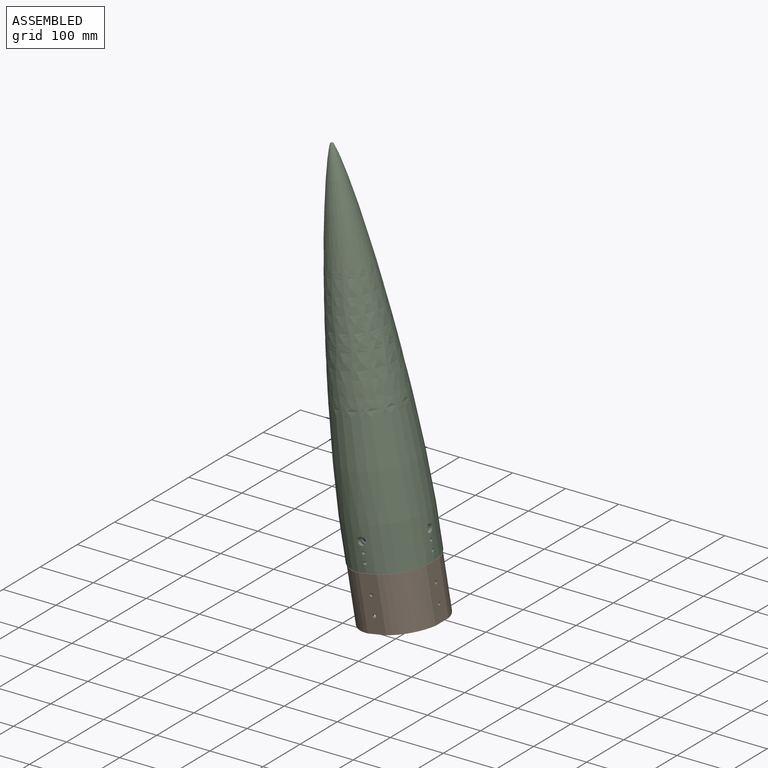
[diagram: assembled view]
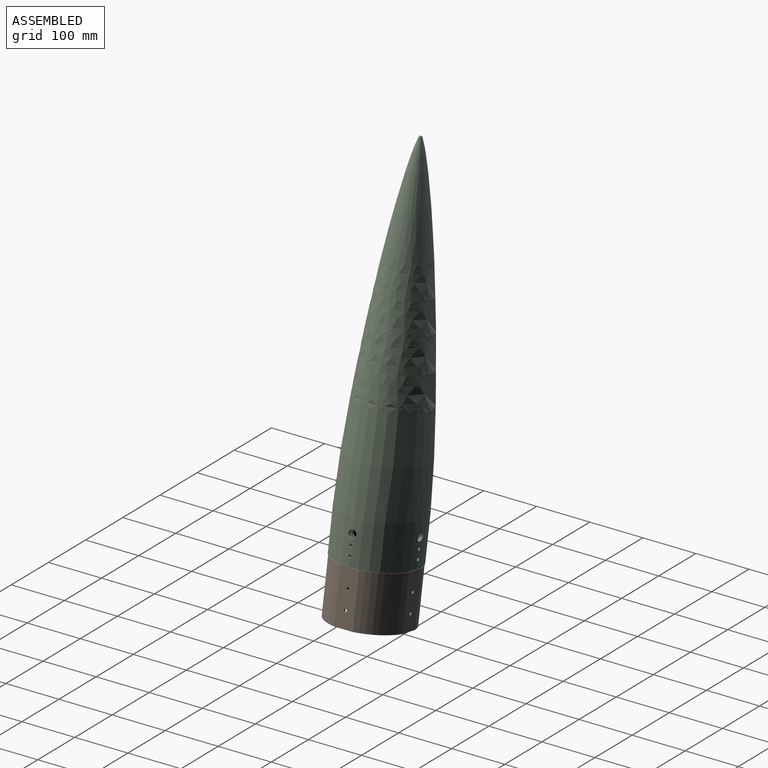
[diagram: assembled view, second angle]
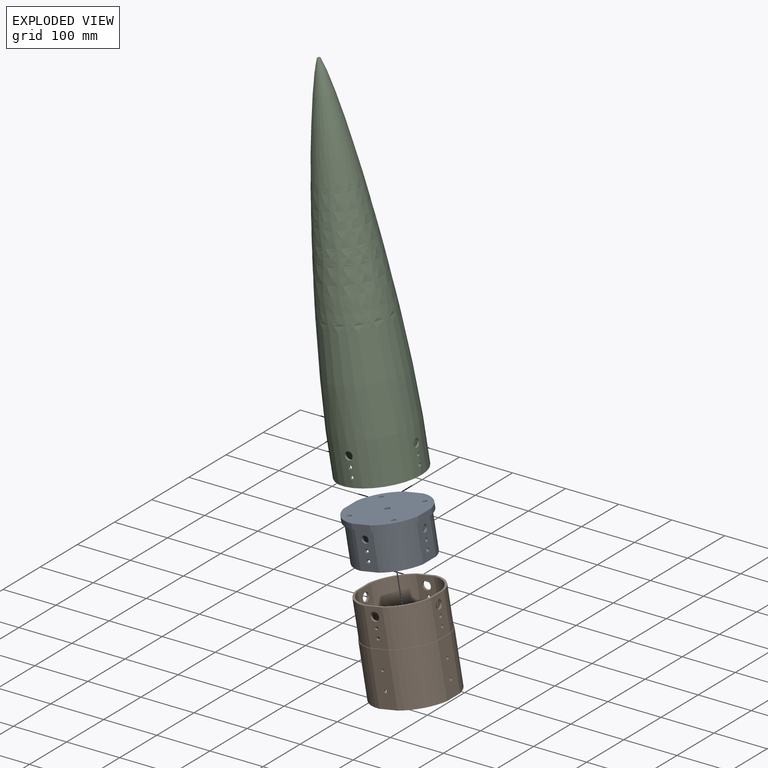
[diagram: exploded view]
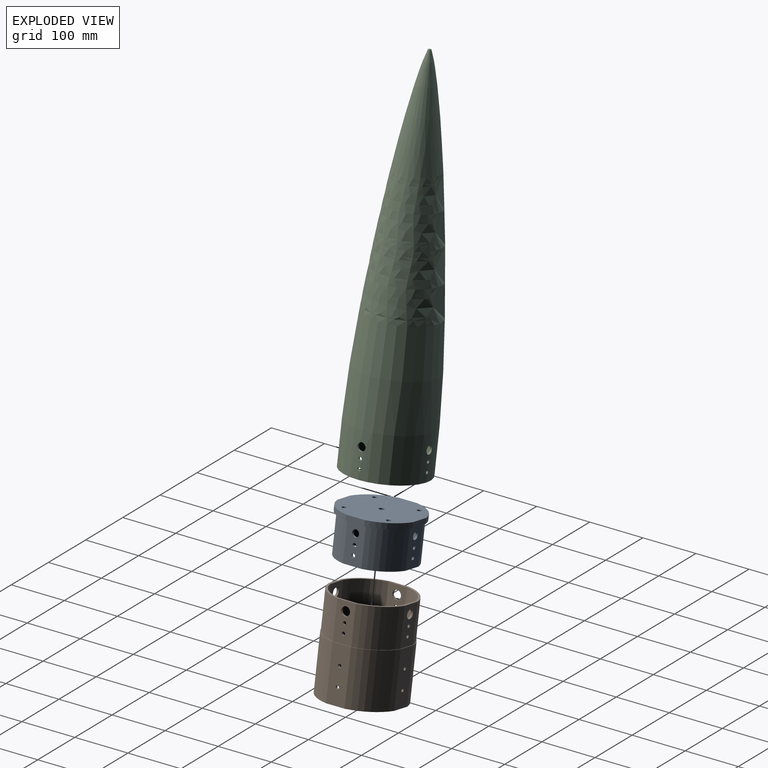
[diagram: exploded view, second angle]
ASSEMBLY  parts=3 mates=2
PART A: 45 faces, bbox 142.8x142.8x80 mm
  f0: plane 70x35mm, normal (0,-1,0), area 2246.8mm2, adj f1,f15,f16,f17,f28,f29,f30
  f1: cylinder r=69mm len=70mm, axis (0,0,-1), area 5109.9mm2, adj f0,f2,f16,f17
  f2: plane 70x35mm, normal (1,0,0), area 2246.8mm2, adj f1,f3,f16,f17,f31,f32,f33
  f3: cylinder r=69mm len=70mm, axis (0,0,-1), area 5109.9mm2, adj f2,f4,f16,f17
  f4: plane 70x35mm, normal (0,1,0), area 2246.8mm2, adj f3,f5,f16,f17,f34,f35,f36
  f5: cylinder r=69mm len=70mm, axis (0,0,-1), area 5109.9mm2, adj f4,f6,f16,f17
  f6: plane 70x35mm, normal (-1,0,0), area 2246.8mm2, adj f5,f15,f16,f17,f37,f38,f39
  f7: cylinder r=65mm len=70mm, axis (0,0,-1), area 4666.5mm2, adj f8,f14,f16,f27
  f8: plane 70x35mm, normal (0,1,0), area 2246.8mm2, adj f7,f9,f16,f27,f28,f29,f30
  f9: cylinder r=65mm len=70mm, axis (0,0,-1), area 4666.5mm2, adj f8,f10,f16,f27
  f10: plane 70x35mm, normal (1,0,0), area 2246.8mm2, adj f9,f11,f16,f27,f37,f38,f39
  f11: cylinder r=65mm len=70mm, axis (0,0,-1), area 4666.5mm2, adj f10,f12,f16,f27
  f12: plane 70x35mm, normal (0,-1,0), area 2246.8mm2, adj f11,f13,f16,f27,f34,f35,f36
  f13: cylinder r=65mm len=70mm, axis (0,0,-1), area 4666.5mm2, adj f12,f14,f16,f27
  f14: plane 70x35mm, normal (-1,0,0), area 2246.8mm2, adj f7,f13,f16,f27,f31,f32,f33
  f15: cylinder r=69mm len=70mm, axis (0,0,-1), area 5109.9mm2, adj f0,f6,f16,f17
  f16: plane 133.49x133.49mm, normal (0,0,-1), area 1697.5mm2, adj f0,f1,f2,f3,f4,f5,f6,f7
  f17: plane 142.77x142.77mm, normal (0,0,-1), area 2028mm2, adj f0,f1,f2,f3,f4,f5,f6,f15
  f18: plane 142.77x142.77mm, normal (0,0,1), area 16484mm2, adj f19,f20,f21,f22,f23,f24,f25,f26
  f19: cylinder r=73.5mm len=53.89mm, axis (0,0,-1), area 801.1mm2, adj f17,f18,f20,f26
  f20: plane 35x10mm, normal (-1,0,0), area 350mm2, adj f17,f18,f19,f21
  f21: cylinder r=73.5mm len=53.89mm, axis (0,0,-1), area 801.1mm2, adj f17,f18,f20,f22
  f22: plane 35x10mm, normal (0,1,0), area 350mm2, adj f17,f18,f21,f23
  f23: cylinder r=73.5mm len=53.89mm, axis (0,0,-1), area 801.1mm2, adj f17,f18,f22,f24
  f24: plane 35x10mm, normal (1,0,0), area 350mm2, adj f17,f18,f23,f25
  f25: cylinder r=73.5mm len=53.89mm, axis (0,0,-1), area 801.1mm2, adj f17,f18,f24,f26
  f26: plane 35x10mm, normal (0,-1,0), area 350mm2, adj f17,f18,f19,f25
  f27: plane 125.2x125.2mm, normal (0,0,-1), area 12758.6mm2, adj f7,f8,f9,f10,f11,f12,f13,f14
  f28: cylinder r=3.35mm len=6.7mm, axis (0,-1,0), area 87.2mm2, adj f0,f8
  f29: cylinder r=3.35mm len=6.7mm, axis (0,-1,0), area 87.2mm2, adj f0,f8
  f30: cylinder r=6.5mm len=13mm, axis (0,-1,0), area 169.2mm2, adj f0,f8
  f31: cylinder r=3.35mm len=6.7mm, axis (1,0,0), area 87.2mm2, adj f2,f14
  f32: cylinder r=3.35mm len=6.7mm, axis (1,0,0), area 87.2mm2, adj f2,f14
  f33: cylinder r=6.5mm len=13mm, axis (1,0,0), area 169.2mm2, adj f2,f14
  f34: cylinder r=3.35mm len=6.7mm, axis (0,1,0), area 87.2mm2, adj f4,f12
  f35: cylinder r=3.35mm len=6.7mm, axis (0,1,0), area 87.2mm2, adj f4,f12
  f36: cylinder r=6.5mm len=13mm, axis (0,1,0), area 169.2mm2, adj f4,f12
  f37: cylinder r=3.35mm len=6.7mm, axis (-1,0,0), area 87.2mm2, adj f6,f10
  f38: cylinder r=3.35mm len=6.7mm, axis (-1,0,0), area 87.2mm2, adj f6,f10
  f39: cylinder r=6.5mm len=13mm, axis (-1,0,0), area 169.2mm2, adj f6,f10
  f40: cylinder r=5mm len=10mm, axis (0,0,1), area 314.2mm2, adj f18,f27
  f41: cylinder r=4.1mm len=10mm, axis (0,0,1), area 257.6mm2, adj f18,f27
  f42: cylinder r=4.1mm len=10mm, axis (0,0,1), area 257.6mm2, adj f18,f27
  f43: cylinder r=4.1mm len=10mm, axis (0,0,1), area 257.6mm2, adj f18,f27
  f44: cylinder r=4.1mm len=10mm, axis (0,0,1), area 257.6mm2, adj f18,f27
PART B: 47 faces, bbox 145.9x145.9x170 mm
  f0: plane 145.86x145.86mm, normal (0,0,1), area 470.8mm2, adj f1,f2,f3,f4,f5,f6,f7,f16
  f1: plane 100x35mm, normal (0,-1,0), area 3441.6mm2, adj f0,f2,f16,f17,f41,f42
  f2: cylinder r=75mm len=100mm, axis (0,0,-1), area 8248.4mm2, adj f0,f1,f3,f17
  f3: plane 100x35mm, normal (1,0,0), area 3441.6mm2, adj f0,f2,f4,f17,f39,f40
  f4: cylinder r=75mm len=100mm, axis (0,0,-1), area 8248.4mm2, adj f0,f3,f5,f17
  f5: plane 100x35mm, normal (0,1,0), area 3441.6mm2, adj f0,f4,f6,f17,f43,f44
  f6: cylinder r=75mm len=100mm, axis (0,0,-1), area 8248.4mm2, adj f0,f5,f7,f17
  f7: plane 100x35mm, normal (-1,0,0), area 3441.6mm2, adj f0,f6,f16,f17,f45,f46
  f8: cylinder r=70mm len=170mm, axis (0,0,-1), area 12678.7mm2, adj f9,f15,f17,f26
  f9: plane 170x35mm, normal (0,1,0), area 5625mm2, adj f8,f10,f17,f26,f27,f28,f29,f41
  f10: cylinder r=70mm len=170mm, axis (0,0,-1), area 12678.7mm2, adj f9,f11,f17,f26
  f11: plane 170x35mm, normal (1,0,0), area 5625mm2, adj f10,f12,f17,f26,f36,f37,f38,f45
  f12: cylinder r=70mm len=170mm, axis (0,0,-1), area 12678.7mm2, adj f11,f13,f17,f26
  f13: plane 170x35mm, normal (0,-1,0), area 5625mm2, adj f12,f14,f17,f26,f33,f34,f35,f43
  f14: cylinder r=70mm len=170mm, axis (0,0,-1), area 12678.7mm2, adj f13,f15,f17,f26
  f15: plane 170x35mm, normal (-1,0,0), area 5625mm2, adj f8,f14,f17,f26,f30,f31,f32,f39
  f16: cylinder r=75mm len=100mm, axis (0,0,-1), area 8248.4mm2, adj f0,f1,f7,f17
  f17: plane 145.86x145.86mm, normal (0,0,-1), area 2292mm2, adj f1,f2,f3,f4,f5,f6,f7,f8
  f18: cylinder r=74mm len=70mm, axis (0,0,-1), area 5663.3mm2, adj f0,f19,f25,f26
  f19: plane 70x35mm, normal (1,0,0), area 2183.5mm2, adj f0,f18,f20,f26,f30,f31,f32
  f20: cylinder r=74mm len=70mm, axis (0,0,-1), area 5663.3mm2, adj f0,f19,f21,f26
  f21: plane 70x35mm, normal (0,1,0), area 2183.5mm2, adj f0,f20,f22,f26,f33,f34,f35
  f22: cylinder r=74mm len=70mm, axis (0,0,-1), area 5663.3mm2, adj f0,f21,f23,f26
  f23: plane 70x35mm, normal (-1,0,0), area 2183.5mm2, adj f0,f22,f24,f26,f36,f37,f38
  f24: cylinder r=74mm len=70mm, axis (0,0,-1), area 5663.3mm2, adj f0,f23,f25,f26
  f25: plane 70x35mm, normal (0,-1,0), area 2183.5mm2, adj f0,f18,f24,f26,f27,f28,f29
  f26: plane 143.8x143.8mm, normal (0,0,1), area 1821.2mm2, adj f8,f9,f10,f11,f12,f13,f14,f15
  f27: cylinder r=3.1mm len=6.2mm, axis (0,-1,0), area 80.3mm2, adj f9,f25
  f28: cylinder r=3.1mm len=6.2mm, axis (0,-1,0), area 80.3mm2, adj f9,f25
  f29: cylinder r=8.1mm len=16.2mm, axis (0,-1,0), area 209.9mm2, adj f9,f25
  f30: cylinder r=3.1mm len=6.2mm, axis (1,0,0), area 80.3mm2, adj f15,f19
  f31: cylinder r=3.1mm len=6.2mm, axis (1,0,0), area 80.3mm2, adj f15,f19
  f32: cylinder r=8.1mm len=16.2mm, axis (1,0,0), area 209.9mm2, adj f15,f19
  f33: cylinder r=3.1mm len=6.2mm, axis (0,1,0), area 80.3mm2, adj f13,f21
  f34: cylinder r=3.1mm len=6.2mm, axis (0,1,0), area 80.3mm2, adj f13,f21
  f35: cylinder r=8.1mm len=16.2mm, axis (0,1,0), area 209.9mm2, adj f13,f21
  f36: cylinder r=3.1mm len=6.2mm, axis (-1,0,0), area 80.3mm2, adj f11,f23
  f37: cylinder r=3.1mm len=6.2mm, axis (-1,0,0), area 80.3mm2, adj f11,f23
  f38: cylinder r=8.1mm len=16.2mm, axis (-1,0,0), area 209.9mm2, adj f11,f23
  f39: cylinder r=3.05mm len=6.1mm, axis (1,0,0), area 98.7mm2, adj f3,f15
  f40: cylinder r=3.05mm len=6.1mm, axis (1,0,0), area 98.7mm2, adj f3,f15
  f41: cylinder r=3.05mm len=6.1mm, axis (0,-1,0), area 98.7mm2, adj f1,f9
  f42: cylinder r=3.05mm len=6.1mm, axis (0,-1,0), area 98.7mm2, adj f1,f9
  f43: cylinder r=3.05mm len=6.1mm, axis (0,1,0), area 98.7mm2, adj f5,f13
  f44: cylinder r=3.05mm len=6.1mm, axis (0,1,0), area 98.7mm2, adj f5,f13
  f45: cylinder r=3.05mm len=6.1mm, axis (-1,0,0), area 98.7mm2, adj f7,f11
  f46: cylinder r=3.05mm len=6.1mm, axis (-1,0,0), area 98.7mm2, adj f7,f11
PART C: 30 faces, bbox 683x152x152 mm
  f0: cone r=76mm half-angle=89.8deg, axis (-1,0,0), area 0.4mm2, adj f1,f7
  f1: revolved ~603x152mm, area 190092.9mm2, adj f0,f29
  f2: plane 35x2.1mm, normal (-1,0,0), area 49.1mm2, adj f15,f16
  f3: plane 35x2.1mm, normal (-1,0,0), area 49.1mm2, adj f9,f16
  f4: plane 35x2.1mm, normal (-1,0,0), area 49.1mm2, adj f11,f16
  f5: plane 35x2.1mm, normal (-1,0,0), area 49.1mm2, adj f13,f16
  f6: plane 152x152mm, normal (1,0,0), area 1138.5mm2, adj f7,f8,f9,f10,f11,f12,f13,f14
  f7: cylinder r=76mm len=152mm, axis (-1,0,0), area 37250.8mm2, adj f0,f6,f17,f18,f19,f20,f21,f22
  f8: cylinder r=74mm len=79.99mm, axis (-1,0,0), area 6472mm2, adj f6,f9,f15,f16
  f9: plane 80x35mm, normal (0,0,-1), area 2562.9mm2, adj f3,f6,f8,f10,f16,f26,f27,f28
  f10: cylinder r=74mm len=79.99mm, axis (-1,0,0), area 6472mm2, adj f6,f9,f11,f16
  f11: plane 80x35mm, normal (0,1,0), area 2562.9mm2, adj f4,f6,f10,f12,f16,f23,f24,f25
  f12: cylinder r=74mm len=79.99mm, axis (-1,0,0), area 6472mm2, adj f6,f11,f13,f16
  f13: plane 80x35mm, normal (0,0,1), area 2562.9mm2, adj f5,f6,f12,f14,f16,f20,f21,f22
  f14: cylinder r=74mm len=79.99mm, axis (-1,0,0), area 6472mm2, adj f6,f13,f15,f16
  f15: plane 80x35mm, normal (0,-1,0), area 2562.9mm2, adj f2,f6,f8,f14,f16,f17,f18,f19
  f16: revolved ~603.01x148mm, area 182375.2mm2, adj f2,f3,f4,f5,f8,f9,f10,f11
  f17: cylinder r=7.5mm len=15mm, axis (0,-1,0), area 184.4mm2, adj f7,f15
  f18: cylinder r=3.1mm len=6.2mm, axis (0,-1,0), area 79.2mm2, adj f7,f15
  f19: cylinder r=3.1mm len=6.2mm, axis (0,-1,0), area 79.2mm2, adj f7,f15
  f20: cylinder r=7.5mm len=15mm, axis (0,0,1), area 184.4mm2, adj f7,f13
  f21: cylinder r=3.1mm len=6.2mm, axis (0,0,1), area 79.2mm2, adj f7,f13
  f22: cylinder r=3.1mm len=6.2mm, axis (0,0,1), area 79.2mm2, adj f7,f13
  f23: cylinder r=7.5mm len=15mm, axis (0,1,0), area 184.4mm2, adj f7,f11
  f24: cylinder r=3.1mm len=6.2mm, axis (0,1,0), area 79.2mm2, adj f7,f11
  f25: cylinder r=3.1mm len=6.2mm, axis (0,1,0), area 79.2mm2, adj f7,f11
  f26: cylinder r=3.1mm len=6.2mm, axis (0,0,-1), area 79.2mm2, adj f7,f9
  f27: cylinder r=3.1mm len=6.2mm, axis (0,0,-1), area 79.2mm2, adj f7,f9
  f28: cylinder r=7.5mm len=15mm, axis (0,0,-1), area 184.4mm2, adj f7,f9
  f29: plane 5.4x5.4mm, normal (-1,0,0), area 22mm2, adj f1,f16
PLACE A rot(axis=(0,-1,0),10deg) t=(131.11,10.17,-158.43)mm
PLACE B rot(axis=(0,-1,0),10deg) t=(148.65,10.17,-257.92)mm
PLACE C rot(axis=(0,1,0),80deg) t=(11.5,10.17,519.91)mm
MATE slider A.f1 <-> B.f2  axis (-0.17,0,0.98) through (117.21,10.17,-79.64)mm
MATE slider C.f0 <-> A.f1  axis (0.17,0,-0.98) through (130.97,10.17,-157.64)mm
